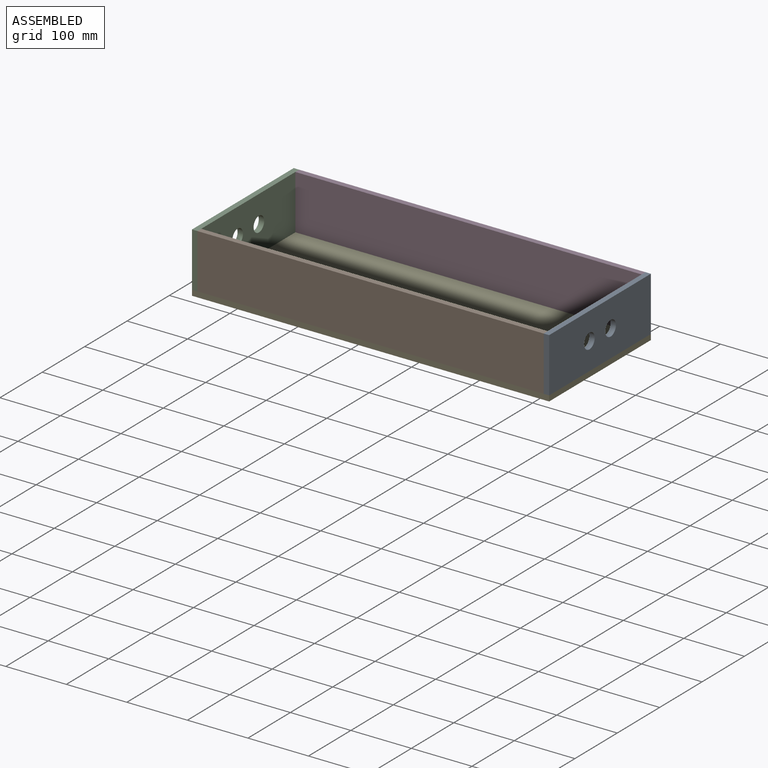
[diagram: assembled view]
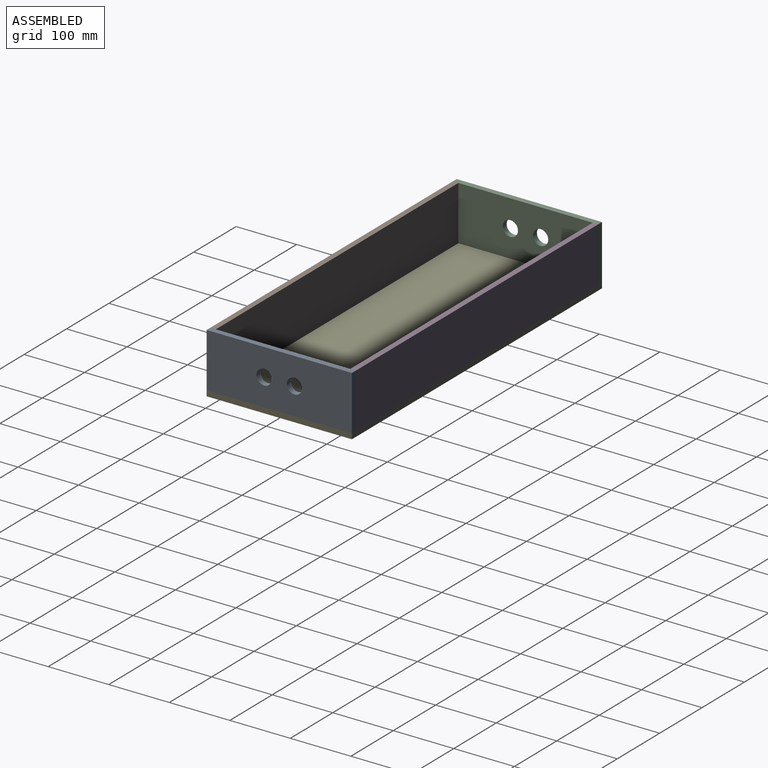
[diagram: assembled view, second angle]
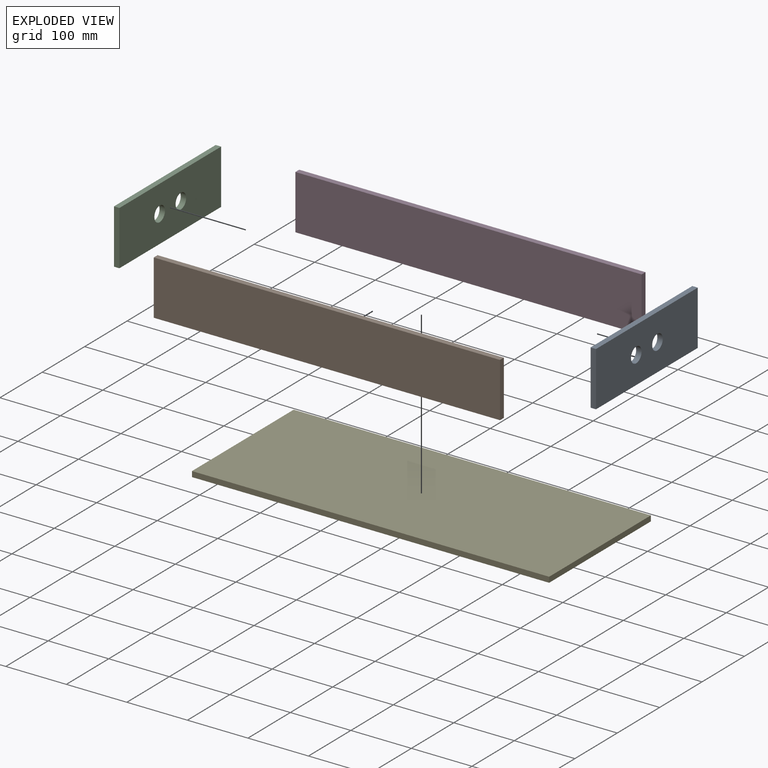
[diagram: exploded view]
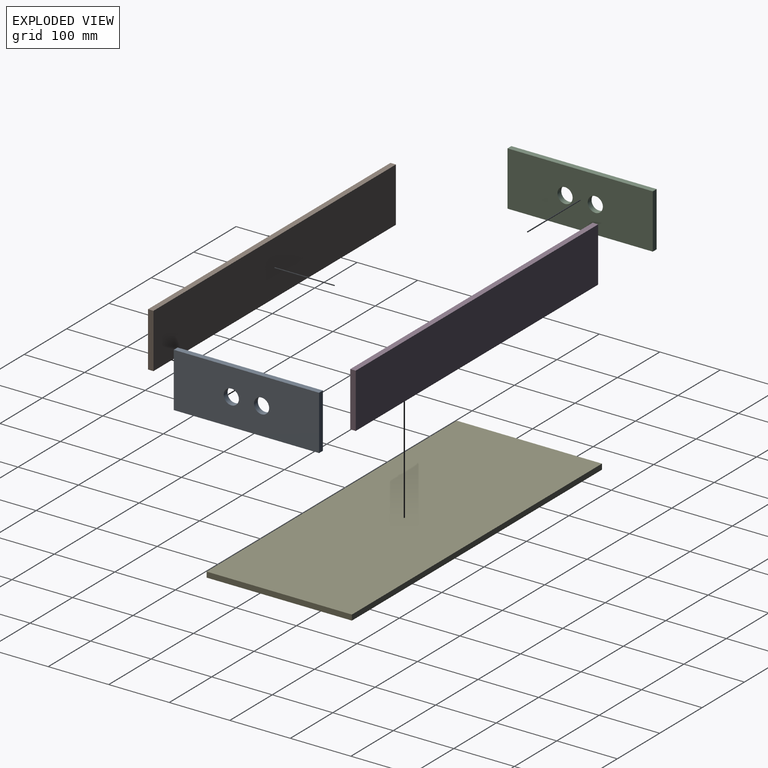
[diagram: exploded view, second angle]
ASSEMBLY  parts=5 mates=4
PART A: 8 faces, bbox 9x240x90 mm
  f0: plane 90x9mm, normal (0,1,0), area 810mm2, adj f1,f3,f6,f7
  f1: plane 240x9mm, normal (0,0,1), area 2160mm2, adj f0,f2,f6,f7
  f2: plane 90x9mm, normal (0,-1,0), area 810mm2, adj f1,f3,f6,f7
  f3: plane 240x9mm, normal (0,0,-1), area 2160mm2, adj f0,f2,f6,f7
  f4: cylinder r=12.5mm len=25mm, axis (1,0,0), area 706.9mm2, adj f6,f7
  f5: cylinder r=12.5mm len=25mm, axis (1,0,0), area 706.9mm2, adj f6,f7
  f6: plane 240x90mm, normal (1,0,0), area 20618.3mm2, adj f0,f1,f2,f3,f4,f5
  f7: plane 240x90mm, normal (-1,0,0), area 20618.3mm2, adj f0,f1,f2,f3,f4,f5
PART B: 6 faces, bbox 572x9x90 mm
  f0: plane 90x9mm, normal (1,0,0), area 810mm2, adj f1,f3,f4,f5
  f1: plane 572x9mm, normal (0,0,1), area 5148mm2, adj f0,f2,f4,f5
  f2: plane 90x9mm, normal (-1,0,0), area 810mm2, adj f1,f3,f4,f5
  f3: plane 572x9mm, normal (0,0,-1), area 5148mm2, adj f0,f2,f4,f5
  f4: plane 572x90mm, normal (0,-1,0), area 51480mm2, adj f0,f1,f2,f3
  f5: plane 572x90mm, normal (0,1,0), area 51480mm2, adj f0,f1,f2,f3
PART C: same geometry as A
PART D: same geometry as B
PART E: 6 faces, bbox 590x240x9 mm
  f0: plane 240x9mm, normal (1,0,0), area 2160mm2, adj f1,f3,f4,f5
  f1: plane 590x9mm, normal (0,1,0), area 5310mm2, adj f0,f2,f4,f5
  f2: plane 240x9mm, normal (-1,0,0), area 2160mm2, adj f1,f3,f4,f5
  f3: plane 590x9mm, normal (0,-1,0), area 5310mm2, adj f0,f2,f4,f5
  f4: plane 590x240mm, normal (0,0,1), area 141600mm2, adj f0,f1,f2,f3
  f5: plane 590x240mm, normal (0,0,-1), area 141600mm2, adj f0,f1,f2,f3
PLACE A t=(551.62,124.07,-160.51)mm
PLACE B t=(-20.38,133.07,-160.51)mm
PLACE C t=(-29.38,124.07,-160.51)mm
PLACE D t=(-20.38,364.07,-160.51)mm
PLACE E t=(-29.38,124.07,-169.51)mm
MATE fastened C.f6 <-> D.f2  axis (1,0,0) through (-20.38,364.07,-160.51)mm
MATE fastened E.f4 <-> C.f3  axis (0,0,1) through (-29.38,364.07,-160.51)mm
MATE fastened B.f0 <-> A.f7  axis (1,0,0) through (551.62,124.07,-160.51)mm
MATE fastened D.f0 <-> A.f7  axis (1,0,0) through (551.62,364.07,-160.51)mm
